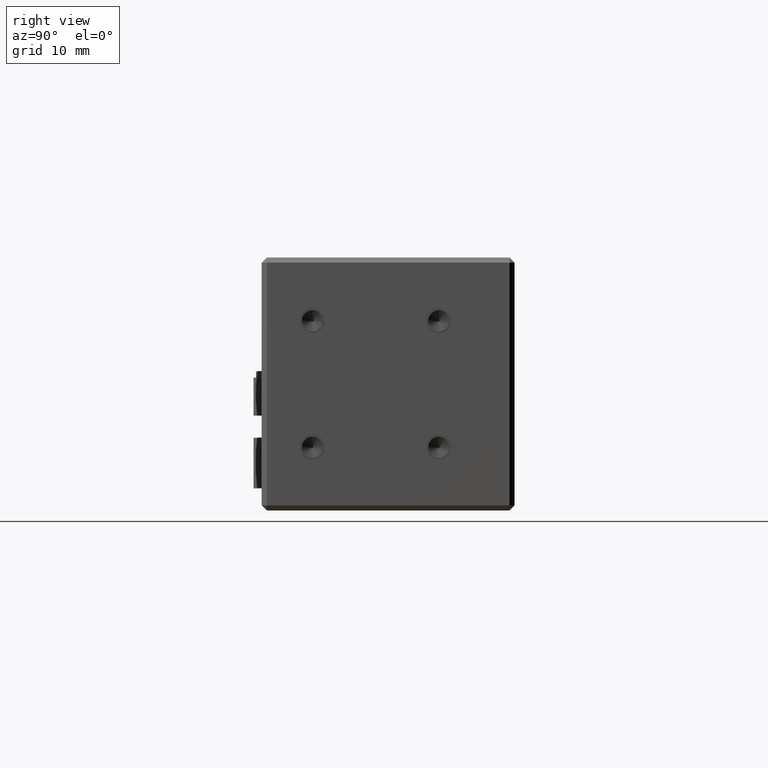
[diagram: clean part render]
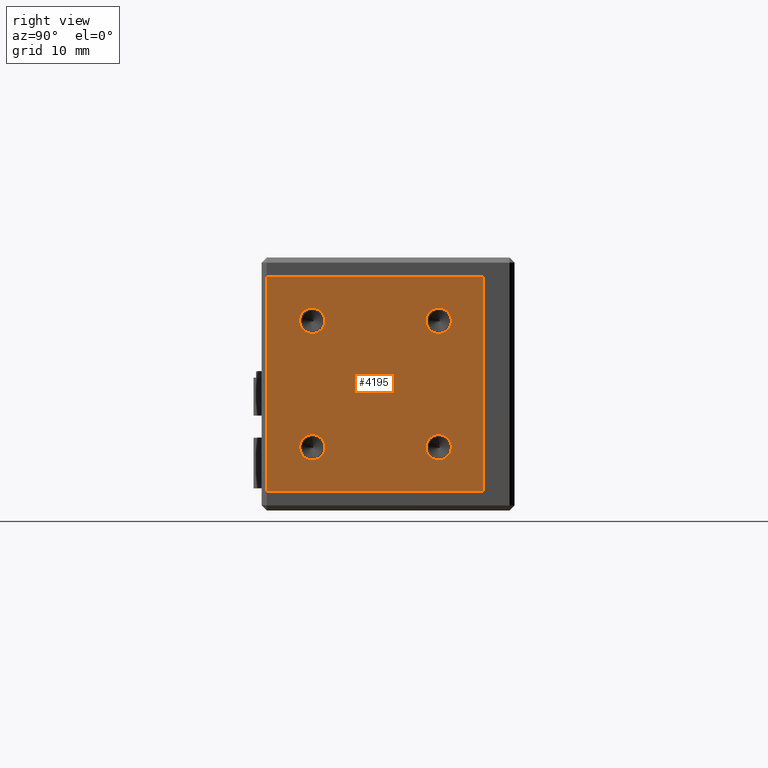
[diagram: same view with one face highlighted and labeled with its STEP entity id]
A machine part, right view. The second image highlights one B-rep face of the part: STEP entity #4195.
In plain terms, the highlighted planar face has unit normal (-1, 0, 0).
Its self-contained STEP definition (entity closure, byte-faithful):
#278 = CARTESIAN_POINT ( 'NONE',  ( 29.76222020198797200, 21.18138602246006000, 32.00000000000955000 ) ) ;
#967 = CARTESIAN_POINT ( 'NONE',  ( 29.76222020198796900, -6.018613977539947900, 37.00000000000955000 ) ) ;
#981 = CARTESIAN_POINT ( 'NONE',  ( 29.76222020198797600, 1.181386022460061200, 8.000000000009551500 ) ) ;
#988 = AXIS2_PLACEMENT_3D ( 'NONE', #12447, #31040, #15169 ) ;
#1085 = EDGE_CURVE ( 'NONE', #10303, #32869, #22848, .T. ) ;
#1215 = CIRCLE ( 'NONE', #14798, 1.999999999999998200 ) ;
#1411 = DIRECTION ( 'NONE',  ( 1.000000000000000000, -0.0000000000000000000, -0.0000000000000000000 ) ) ;
#1594 = EDGE_LOOP ( 'NONE', ( #23200, #25778 ) ) ;
#2744 = VERTEX_POINT ( 'NONE', #27980 ) ;
#3005 = CARTESIAN_POINT ( 'NONE',  ( 29.76222020198797600, 21.18138602246006000, 8.000000000009551500 ) ) ;
#3151 = ORIENTED_EDGE ( 'NONE', *, *, #29213, .F. ) ;
#3349 = VERTEX_POINT ( 'NONE', #967 ) ;
#3524 = DIRECTION ( 'NONE',  ( 1.000000000000000000, -0.0000000000000000000, -0.0000000000000000000 ) ) ;
#3921 = CARTESIAN_POINT ( 'NONE',  ( 29.76222020198797200, 1.181386022460064700, 32.00000000000955000 ) ) ;
#3965 = CIRCLE ( 'NONE', #27256, 1.999999999999998200 ) ;
#4195 = ADVANCED_FACE ( 'NONE', ( #31432, #24348, #17324, #10247, #18165 ), #12510, .F. ) ;
#4646 = LINE ( 'NONE', #14802, #10852 ) ;
#4724 = CIRCLE ( 'NONE', #17977, 1.999999999999998200 ) ;
#4761 = DIRECTION ( 'NONE',  ( 1.000000000000000000, -0.0000000000000000000, -0.0000000000000000000 ) ) ;
#5475 = EDGE_LOOP ( 'NONE', ( #29789, #16028 ) ) ;
#5588 = CARTESIAN_POINT ( 'NONE',  ( 29.76222020198797200, 28.18138602246006000, 3.000000000009547900 ) ) ;
#5683 = DIRECTION ( 'NONE',  ( 1.000000000000000000, -0.0000000000000000000, -0.0000000000000000000 ) ) ;
#5794 = CARTESIAN_POINT ( 'NONE',  ( 29.76222020198797200, 28.18138602246006000, 37.00000000000955000 ) ) ;
#6588 = EDGE_CURVE ( 'NONE', #25995, #7673, #22391, .T. ) ;
#7147 = CIRCLE ( 'NONE', #30801, 1.999999999999998200 ) ;
#7673 = VERTEX_POINT ( 'NONE', #5588 ) ;
#7705 = EDGE_CURVE ( 'NONE', #12078, #20772, #3965, .T. ) ;
#7858 = DIRECTION ( 'NONE',  ( -0.0000000000000000000, 0.0000000000000000000, 1.000000000000000000 ) ) ;
#8384 = DIRECTION ( 'NONE',  ( 1.000000000000000000, -0.0000000000000000000, -0.0000000000000000000 ) ) ;
#8415 = EDGE_LOOP ( 'NONE', ( #33374, #19052, #15812, #24201 ) ) ;
#9981 = DIRECTION ( 'NONE',  ( -1.000000000000000000, 4.956352788505164000E-017, 0.0000000000000000000 ) ) ;
#10247 = FACE_BOUND ( 'NONE', #32060, .T. ) ;
#10303 = VERTEX_POINT ( 'NONE', #3005 ) ;
#10349 = ORIENTED_EDGE ( 'NONE', *, *, #1085, .F. ) ;
#10406 = CARTESIAN_POINT ( 'NONE',  ( 29.76222020198797600, 21.18138602246006000, 10.00000000000955000 ) ) ;
#10429 = LINE ( 'NONE', #13272, #24524 ) ;
#10637 = CARTESIAN_POINT ( 'NONE',  ( 29.76222020198797600, 1.181386022460061200, 10.00000000000955000 ) ) ;
#10852 = VECTOR ( 'NONE', #20119, 1000.000000000000000 ) ;
#12078 = VERTEX_POINT ( 'NONE', #3921 ) ;
#12447 = CARTESIAN_POINT ( 'NONE',  ( 29.76222020198797200, 1.181386022460064500, 30.00000000000955000 ) ) ;
#12510 = PLANE ( 'NONE',  #28216 ) ;
#13229 = EDGE_LOOP ( 'NONE', ( #3151, #28567 ) ) ;
#13272 = CARTESIAN_POINT ( 'NONE',  ( 29.76222020198797600, 28.18138602246006000, 37.00000000000955000 ) ) ;
#13299 = DIRECTION ( 'NONE',  ( 0.0000000000000000000, 0.0000000000000000000, -1.000000000000000000 ) ) ;
#13950 = EDGE_CURVE ( 'NONE', #7673, #30712, #10429, .T. ) ;
#14484 = EDGE_CURVE ( 'NONE', #32869, #10303, #18277, .T. ) ;
#14798 = AXIS2_PLACEMENT_3D ( 'NONE', #15455, #34032, #18127 ) ;
#14802 = CARTESIAN_POINT ( 'NONE',  ( 29.76222020198796900, 28.18138602246006000, 37.00000000000955000 ) ) ;
#15036 = AXIS2_PLACEMENT_3D ( 'NONE', #17260, #1411, #19907 ) ;
#15169 = DIRECTION ( 'NONE',  ( 0.0000000000000000000, 0.0000000000000000000, -1.000000000000000000 ) ) ;
#15455 = CARTESIAN_POINT ( 'NONE',  ( 29.76222020198797600, 1.181386022460061200, 10.00000000000955000 ) ) ;
#15812 = ORIENTED_EDGE ( 'NONE', *, *, #13950, .T. ) ;
#15995 = EDGE_CURVE ( 'NONE', #20772, #12078, #18792, .T. ) ;
#16028 = ORIENTED_EDGE ( 'NONE', *, *, #18950, .F. ) ;
#16065 = AXIS2_PLACEMENT_3D ( 'NONE', #10406, #4761, #23325 ) ;
#16275 = LINE ( 'NONE', #27940, #23335 ) ;
#17260 = CARTESIAN_POINT ( 'NONE',  ( 29.76222020198797200, 21.18138602246006000, 30.00000000000955000 ) ) ;
#17300 = CARTESIAN_POINT ( 'NONE',  ( 29.76222020198797200, 28.18138602246006000, 3.000000000009547900 ) ) ;
#17324 = FACE_BOUND ( 'NONE', #13229, .T. ) ;
#17398 = EDGE_CURVE ( 'NONE', #2744, #23362, #1215, .T. ) ;
#17977 = AXIS2_PLACEMENT_3D ( 'NONE', #10637, #29234, #13299 ) ;
#18127 = DIRECTION ( 'NONE',  ( 0.0000000000000000000, 0.0000000000000000000, -1.000000000000000000 ) ) ;
#18165 = FACE_BOUND ( 'NONE', #5475, .T. ) ;
#18277 = CIRCLE ( 'NONE', #16065, 1.999999999999998200 ) ;
#18792 = CIRCLE ( 'NONE', #988, 1.999999999999998200 ) ;
#18950 = EDGE_CURVE ( 'NONE', #23574, #29296, #7147, .T. ) ;
#19052 = ORIENTED_EDGE ( 'NONE', *, *, #6588, .T. ) ;
#19406 = CARTESIAN_POINT ( 'NONE',  ( 29.76222020198797200, 21.18138602246006000, 30.00000000000955000 ) ) ;
#19907 = DIRECTION ( 'NONE',  ( 0.0000000000000000000, 0.0000000000000000000, -1.000000000000000000 ) ) ;
#20101 = ORIENTED_EDGE ( 'NONE', *, *, #14484, .F. ) ;
#20119 = DIRECTION ( 'NONE',  ( 0.0000000000000000000, 1.000000000000000000, 0.0000000000000000000 ) ) ;
#20772 = VERTEX_POINT ( 'NONE', #30901 ) ;
#21593 = CARTESIAN_POINT ( 'NONE',  ( 29.76222020198797600, 21.18138602246006000, 10.00000000000955000 ) ) ;
#21962 = CIRCLE ( 'NONE', #15036, 1.999999999999998200 ) ;
#22088 = DIRECTION ( 'NONE',  ( 0.0000000000000000000, 0.0000000000000000000, -1.000000000000000000 ) ) ;
#22391 = LINE ( 'NONE', #17300, #34034 ) ;
#22848 = CIRCLE ( 'NONE', #34397, 1.999999999999998200 ) ;
#23200 = ORIENTED_EDGE ( 'NONE', *, *, #15995, .F. ) ;
#23325 = DIRECTION ( 'NONE',  ( 0.0000000000000000000, 0.0000000000000000000, -1.000000000000000000 ) ) ;
#23335 = VECTOR ( 'NONE', #30563, 1000.000000000000000 ) ;
#23362 = VERTEX_POINT ( 'NONE', #981 ) ;
#23574 = VERTEX_POINT ( 'NONE', #278 ) ;
#24083 = CARTESIAN_POINT ( 'NONE',  ( 29.76222020198797200, 21.18138602246006000, 28.00000000000955300 ) ) ;
#24201 = ORIENTED_EDGE ( 'NONE', *, *, #24849, .F. ) ;
#24235 = DIRECTION ( 'NONE',  ( 0.0000000000000000000, 0.0000000000000000000, -1.000000000000000000 ) ) ;
#24252 = CARTESIAN_POINT ( 'NONE',  ( 29.76222020198797200, 1.181386022460064500, 30.00000000000955000 ) ) ;
#24338 = EDGE_CURVE ( 'NONE', #25995, #3349, #16275, .T. ) ;
#24348 = FACE_BOUND ( 'NONE', #1594, .T. ) ;
#24524 = VECTOR ( 'NONE', #7858, 1000.000000000000000 ) ;
#24849 = EDGE_CURVE ( 'NONE', #3349, #30712, #4646, .T. ) ;
#25129 = CARTESIAN_POINT ( 'NONE',  ( 29.76222020198796900, -6.018613977539944300, 3.000000000009541300 ) ) ;
#25725 = CARTESIAN_POINT ( 'NONE',  ( 29.76222020198797600, 21.18138602246006000, 12.00000000000954800 ) ) ;
#25778 = ORIENTED_EDGE ( 'NONE', *, *, #7705, .F. ) ;
#25892 = CARTESIAN_POINT ( 'NONE',  ( 29.76222020198797200, -6.818613977539942400, 37.00000000000955000 ) ) ;
#25995 = VERTEX_POINT ( 'NONE', #25129 ) ;
#26934 = DIRECTION ( 'NONE',  ( 0.0000000000000000000, 0.0000000000000000000, -1.000000000000000000 ) ) ;
#27256 = AXIS2_PLACEMENT_3D ( 'NONE', #24252, #8384, #26934 ) ;
#27940 = CARTESIAN_POINT ( 'NONE',  ( 29.76222020198797200, -6.018613977539940800, 37.00000000000955000 ) ) ;
#27980 = CARTESIAN_POINT ( 'NONE',  ( 29.76222020198797600, 1.181386022460061400, 12.00000000000954800 ) ) ;
#28158 = EDGE_CURVE ( 'NONE', #29296, #23574, #21962, .T. ) ;
#28216 = AXIS2_PLACEMENT_3D ( 'NONE', #25892, #9981, #28584 ) ;
#28567 = ORIENTED_EDGE ( 'NONE', *, *, #17398, .F. ) ;
#28584 = DIRECTION ( 'NONE',  ( -4.956352788505164000E-017, -1.000000000000000000, 0.0000000000000000000 ) ) ;
#29213 = EDGE_CURVE ( 'NONE', #23362, #2744, #4724, .T. ) ;
#29234 = DIRECTION ( 'NONE',  ( 1.000000000000000000, -0.0000000000000000000, -0.0000000000000000000 ) ) ;
#29296 = VERTEX_POINT ( 'NONE', #24083 ) ;
#29789 = ORIENTED_EDGE ( 'NONE', *, *, #28158, .F. ) ;
#30563 = DIRECTION ( 'NONE',  ( 0.0000000000000000000, 0.0000000000000000000, 1.000000000000000000 ) ) ;
#30712 = VERTEX_POINT ( 'NONE', #5794 ) ;
#30801 = AXIS2_PLACEMENT_3D ( 'NONE', #19406, #3524, #22088 ) ;
#30901 = CARTESIAN_POINT ( 'NONE',  ( 29.76222020198797200, 1.181386022460064500, 28.00000000000955300 ) ) ;
#31040 = DIRECTION ( 'NONE',  ( 1.000000000000000000, -0.0000000000000000000, -0.0000000000000000000 ) ) ;
#31432 = FACE_OUTER_BOUND ( 'NONE', #8415, .T. ) ;
#32060 = EDGE_LOOP ( 'NONE', ( #10349, #20101 ) ) ;
#32869 = VERTEX_POINT ( 'NONE', #25725 ) ;
#33206 = DIRECTION ( 'NONE',  ( 0.0000000000000000000, 1.000000000000000000, 0.0000000000000000000 ) ) ;
#33374 = ORIENTED_EDGE ( 'NONE', *, *, #24338, .F. ) ;
#34032 = DIRECTION ( 'NONE',  ( 1.000000000000000000, -0.0000000000000000000, -0.0000000000000000000 ) ) ;
#34034 = VECTOR ( 'NONE', #33206, 1000.000000000000000 ) ;
#34397 = AXIS2_PLACEMENT_3D ( 'NONE', #21593, #5683, #24235 ) ;